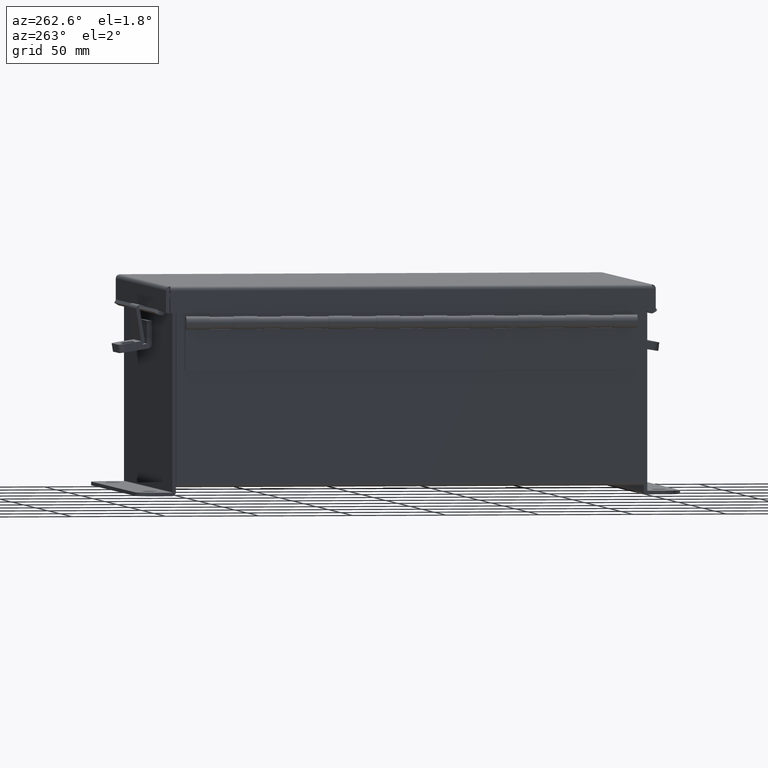
[diagram: clean part render]
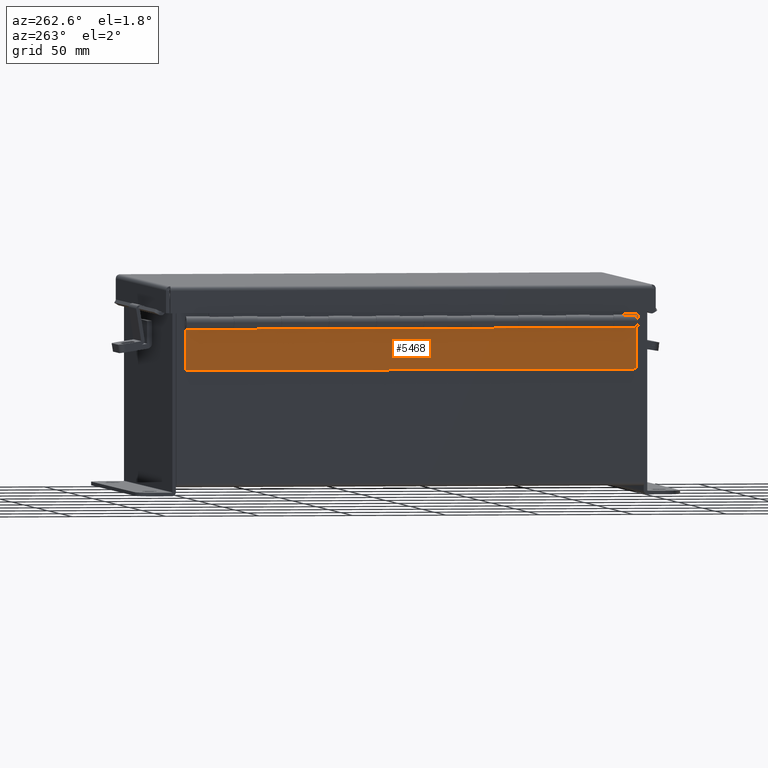
[diagram: same view with one face highlighted and labeled with its STEP entity id]
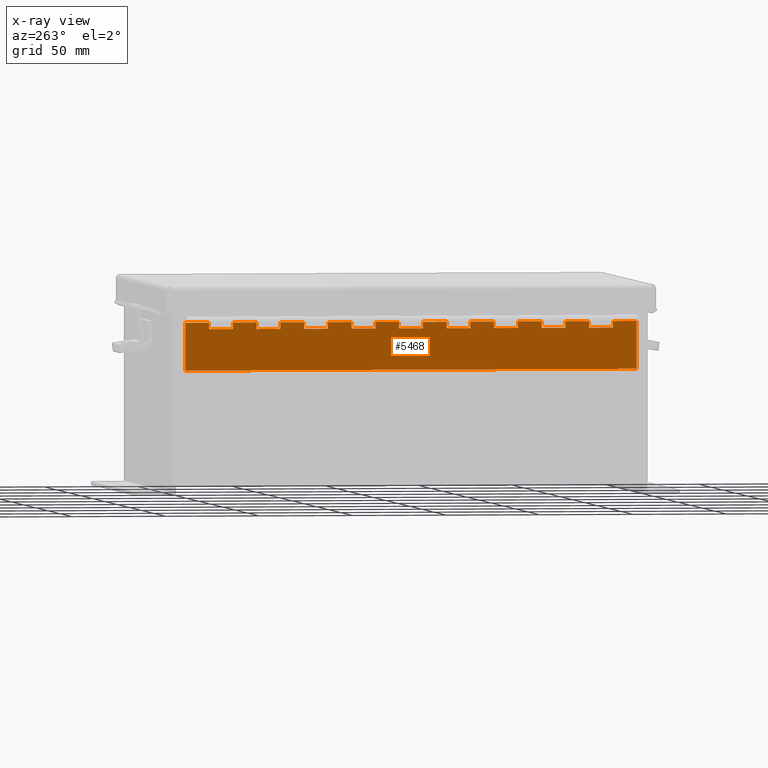
[diagram: x-ray of the same camera — body ghosted, the highlighted face saturated]
A machine part, auxiliary view. The second image highlights one B-rep face of the part: STEP entity #5468.
The next image is the same camera in x-ray: the body ghosted, the highlighted face saturated — about 0% of this face is hidden behind the body in this view.
In plain terms, the highlighted planar face has unit normal (1, -0, 0).
Its self-contained STEP definition (entity closure, byte-faithful):
#31 = CARTESIAN_POINT ( 'NONE',  ( 0.2730000000000000200, -5.000000000000000000, 3.404394821604483900E-016 ) ) ;
#58 = VECTOR ( 'NONE', #6525, 39.37007874015748100 ) ;
#103 = VERTEX_POINT ( 'NONE', #5431 ) ;
#131 = DIRECTION ( 'NONE',  ( -1.437814733507507500E-017, 1.000000000000000000, 0.0000000000000000000 ) ) ;
#192 = CARTESIAN_POINT ( 'NONE',  ( 0.2730000000000000200, -2.000000000000000000, 1.361757928641793600E-016 ) ) ;
#345 = DIRECTION ( 'NONE',  ( -1.437814733507507500E-017, 1.000000000000000000, 0.0000000000000000000 ) ) ;
#379 = CARTESIAN_POINT ( 'NONE',  ( 0.0000000000000000000, 6.500000000000000900, 1.361757928641793600E-016 ) ) ;
#443 = CARTESIAN_POINT ( 'NONE',  ( 0.0000000000000000000, 0.0000000000000000000, 0.0000000000000000000 ) ) ;
#458 = LINE ( 'NONE', #12876, #58 ) ;
#548 = LINE ( 'NONE', #14145, #14093 ) ;
#680 = CARTESIAN_POINT ( 'NONE',  ( 0.0000000000000000000, 9.000000000000000000, 0.0000000000000000000 ) ) ;
#721 = ORIENTED_EDGE ( 'NONE', *, *, #5906, .T. ) ;
#776 = LINE ( 'NONE', #3078, #7188 ) ;
#828 = VECTOR ( 'NONE', #3370, 39.37007874015748100 ) ;
#840 = LINE ( 'NONE', #4373, #6848 ) ;
#858 = CARTESIAN_POINT ( 'NONE',  ( 0.2729999999999998500, 3.500000000000000400, 4.087356820020549700E-016 ) ) ;
#925 = CARTESIAN_POINT ( 'NONE',  ( 0.1365000000000000100, 3.500000000000000400, 2.123841074574360600E-016 ) ) ;
#1096 = VERTEX_POINT ( 'NONE', #1875 ) ;
#1124 = ORIENTED_EDGE ( 'NONE', *, *, #9245, .F. ) ;
#1196 = CARTESIAN_POINT ( 'NONE',  ( 0.2729999999999998500, 4.500000000000000900, 3.406477855699652900E-016 ) ) ;
#1263 = CARTESIAN_POINT ( 'NONE',  ( 0.1365000000000000100, 8.500000000000000000, -1.280553747030123300E-016 ) ) ;
#1297 = LINE ( 'NONE', #2467, #11082 ) ;
#1312 = EDGE_CURVE ( 'NONE', #4474, #7155, #5519, .T. ) ;
#1365 = CARTESIAN_POINT ( 'NONE',  ( 0.2730000000000000200, -5.999999999999999100, 4.085273785925380200E-016 ) ) ;
#1367 = DIRECTION ( 'NONE',  ( -1.000000000000000000, 0.0000000000000000000, 0.0000000000000000000 ) ) ;
#1383 = ORIENTED_EDGE ( 'NONE', *, *, #14109, .F. ) ;
#1430 = EDGE_CURVE ( 'NONE', #3677, #5442, #13668, .T. ) ;
#1481 = DIRECTION ( 'NONE',  ( -1.437814733507507500E-017, 1.000000000000000000, 0.0000000000000000000 ) ) ;
#1514 = DIRECTION ( 'NONE',  ( -1.000000000000000000, 0.0000000000000000000, 0.0000000000000000000 ) ) ;
#1553 = VECTOR ( 'NONE', #14363, 39.37007874015748100 ) ;
#1633 = CARTESIAN_POINT ( 'NONE',  ( 0.2729999999999998500, 9.000000000000000000, 6.829619984160658000E-017 ) ) ;
#1667 = CARTESIAN_POINT ( 'NONE',  ( 0.0000000000000000000, 4.500000000000000900, 2.723515857283587100E-016 ) ) ;
#1795 = ORIENTED_EDGE ( 'NONE', *, *, #12142, .F. ) ;
#1818 = LINE ( 'NONE', #4915, #8212 ) ;
#1875 = CARTESIAN_POINT ( 'NONE',  ( 0.2729999999999998500, 5.500000000000000900, 2.725598891378756200E-016 ) ) ;
#1895 = DIRECTION ( 'NONE',  ( 0.0000000000000000000, 1.000000000000000000, -6.810147738116168400E-017 ) ) ;
#1965 = VECTOR ( 'NONE', #3549, 39.37007874015748100 ) ;
#1969 = LINE ( 'NONE', #1667, #1553 ) ;
#1993 = CARTESIAN_POINT ( 'NONE',  ( 1.136499999999999800, 9.500000000000000000, 0.0000000000000000000 ) ) ;
#2053 = DIRECTION ( 'NONE',  ( -1.000000000000000000, 0.0000000000000000000, -0.0000000000000000000 ) ) ;
#2058 = VERTEX_POINT ( 'NONE', #8761 ) ;
#2115 = CARTESIAN_POINT ( 'NONE',  ( 0.2729999999999998500, 1.500000000000000900, 5.449114748662342800E-016 ) ) ;
#2145 = VECTOR ( 'NONE', #14890, 39.37007874015748100 ) ;
#2163 = LINE ( 'NONE', #8878, #11531 ) ;
#2217 = DIRECTION ( 'NONE',  ( 0.0000000000000000000, 1.000000000000000000, -6.810147738116168400E-017 ) ) ;
#2281 = CARTESIAN_POINT ( 'NONE',  ( 0.1365000000000000100, -4.256342336322596800E-018, 4.524623239506435500E-016 ) ) ;
#2397 = VERTEX_POINT ( 'NONE', #8118 ) ;
#2467 = CARTESIAN_POINT ( 'NONE',  ( 0.1365000000000000100, -4.256342336322596800E-018, 4.524623239506435500E-016 ) ) ;
#2592 = ORIENTED_EDGE ( 'NONE', *, *, #5142, .F. ) ;
#2663 = EDGE_CURVE ( 'NONE', #6474, #6199, #14007, .T. ) ;
#2681 = VECTOR ( 'NONE', #131, 39.37007874015748100 ) ;
#2688 = EDGE_CURVE ( 'NONE', #4606, #3364, #458, .T. ) ;
#2741 = VECTOR ( 'NONE', #15843, 39.37007874015748100 ) ;
#2750 = VECTOR ( 'NONE', #4114, 39.37007874015748100 ) ;
#2794 = CARTESIAN_POINT ( 'NONE',  ( 0.1365000000000000100, -4.256342336322596800E-018, 4.524623239506435500E-016 ) ) ;
#2899 = DIRECTION ( 'NONE',  ( -1.000000000000000000, 0.0000000000000000000, 0.0000000000000000000 ) ) ;
#2956 = VERTEX_POINT ( 'NONE', #5846 ) ;
#3066 = EDGE_CURVE ( 'NONE', #7896, #6199, #11037, .T. ) ;
#3078 = CARTESIAN_POINT ( 'NONE',  ( 0.0000000000000000000, 2.500000000000001300, 4.085273785925380200E-016 ) ) ;
#3097 = CARTESIAN_POINT ( 'NONE',  ( 0.0000000000000000000, 1.500000000000000900, 4.766152750246277500E-016 ) ) ;
#3101 = EDGE_CURVE ( 'NONE', #4606, #14135, #840, .T. ) ;
#3114 = DIRECTION ( 'NONE',  ( -1.437814733507507500E-017, 1.000000000000000000, 0.0000000000000000000 ) ) ;
#3155 = LINE ( 'NONE', #14193, #12927 ) ;
#3299 = CARTESIAN_POINT ( 'NONE',  ( 0.2729999999999998500, 5.000000000000000000, 3.406477855699652900E-016 ) ) ;
#3364 = VERTEX_POINT ( 'NONE', #1263 ) ;
#3368 = CARTESIAN_POINT ( 'NONE',  ( 0.2730000000000000200, -4.000000000000000000, 2.723515857283587100E-016 ) ) ;
#3370 = DIRECTION ( 'NONE',  ( -1.000000000000000000, 0.0000000000000000000, 0.0000000000000000000 ) ) ;
#3384 = ORIENTED_EDGE ( 'NONE', *, *, #6919, .F. ) ;
#3391 = LINE ( 'NONE', #15393, #16144 ) ;
#3524 = DIRECTION ( 'NONE',  ( -1.000000000000000000, 0.0000000000000000000, 0.0000000000000000000 ) ) ;
#3540 = CARTESIAN_POINT ( 'NONE',  ( 0.0000000000000000000, 5.500000000000000900, 2.042636892962690100E-016 ) ) ;
#3549 = DIRECTION ( 'NONE',  ( 0.0000000000000000000, 1.000000000000000000, -6.810147738116168400E-017 ) ) ;
#3603 = EDGE_CURVE ( 'NONE', #1096, #11197, #4205, .T. ) ;
#3616 = VERTEX_POINT ( 'NONE', #858 ) ;
#3620 = ORIENTED_EDGE ( 'NONE', *, *, #12126, .F. ) ;
#3647 = ORIENTED_EDGE ( 'NONE', *, *, #11825, .T. ) ;
#3663 = VECTOR ( 'NONE', #345, 39.37007874015748100 ) ;
#3677 = VERTEX_POINT ( 'NONE', #10736 ) ;
#3685 = CARTESIAN_POINT ( 'NONE',  ( 0.2730000000000000200, -7.000000000000000000, 4.766152750246277500E-016 ) ) ;
#3827 = VECTOR ( 'NONE', #8104, 39.37007874015748100 ) ;
#3833 = VECTOR ( 'NONE', #2899, 39.37007874015748100 ) ;
#4045 = DIRECTION ( 'NONE',  ( -1.000000000000000000, 0.0000000000000000000, 0.0000000000000000000 ) ) ;
#4114 = DIRECTION ( 'NONE',  ( -1.000000000000000000, 0.0000000000000000000, 0.0000000000000000000 ) ) ;
#4125 = LINE ( 'NONE', #6238, #7553 ) ;
#4189 = ORIENTED_EDGE ( 'NONE', *, *, #15868, .T. ) ;
#4205 = LINE ( 'NONE', #3540, #828 ) ;
#4219 = VECTOR ( 'NONE', #1895, 39.37007874015748100 ) ;
#4222 = EDGE_CURVE ( 'NONE', #8970, #12136, #6630, .T. ) ;
#4225 = LINE ( 'NONE', #443, #3827 ) ;
#4354 = LINE ( 'NONE', #10503, #7380 ) ;
#4373 = CARTESIAN_POINT ( 'NONE',  ( 0.2730000000000000200, 3.925234222475494700E-018, 0.0000000000000000000 ) ) ;
#4453 = DIRECTION ( 'NONE',  ( -1.437814733507507500E-017, 1.000000000000000000, 0.0000000000000000000 ) ) ;
#4474 = VERTEX_POINT ( 'NONE', #13557 ) ;
#4514 = VERTEX_POINT ( 'NONE', #9227 ) ;
#4581 = CARTESIAN_POINT ( 'NONE',  ( 0.1365000000000000100, 8.000000000000000000, -9.234949509864987000E-017 ) ) ;
#4606 = VERTEX_POINT ( 'NONE', #9686 ) ;
#4766 = EDGE_CURVE ( 'NONE', #3677, #7977, #12213, .T. ) ;
#4857 = CARTESIAN_POINT ( 'NONE',  ( 0.0000000000000000000, 7.000000000000000900, 1.361757928641793600E-016 ) ) ;
#4915 = CARTESIAN_POINT ( 'NONE',  ( 0.0000000000000000000, 3.000000000000000900, 4.085273785925380200E-016 ) ) ;
#5116 = VECTOR ( 'NONE', #1481, 39.37007874015748100 ) ;
#5142 = EDGE_CURVE ( 'NONE', #14338, #4514, #1818, .T. ) ;
#5189 = VERTEX_POINT ( 'NONE', #1196 ) ;
#5197 = VERTEX_POINT ( 'NONE', #15209 ) ;
#5236 = EDGE_CURVE ( 'NONE', #3616, #2956, #13366, .T. ) ;
#5284 = CARTESIAN_POINT ( 'NONE',  ( 0.2729999999999998500, 0.5000000000000006700, 6.129993712983240600E-016 ) ) ;
#5431 = CARTESIAN_POINT ( 'NONE',  ( 0.1365000000000000100, 5.000000000000000000, 1.119549370448351400E-016 ) ) ;
#5442 = VERTEX_POINT ( 'NONE', #12146 ) ;
#5468 = ADVANCED_FACE ( 'NONE', ( #13541 ), #8408, .F. ) ;
#5499 = EDGE_CURVE ( 'NONE', #12136, #9021, #6802, .T. ) ;
#5519 = LINE ( 'NONE', #7613, #2145 ) ;
#5574 = VERTEX_POINT ( 'NONE', #8559 ) ;
#5591 = CARTESIAN_POINT ( 'NONE',  ( 0.2729999999999998500, 1.000000000000000200, 6.129993712983240600E-016 ) ) ;
#5599 = ORIENTED_EDGE ( 'NONE', *, *, #5236, .F. ) ;
#5619 = LINE ( 'NONE', #11874, #12021 ) ;
#5680 = LINE ( 'NONE', #11706, #9079 ) ;
#5800 = ORIENTED_EDGE ( 'NONE', *, *, #12459, .T. ) ;
#5846 = CARTESIAN_POINT ( 'NONE',  ( 0.2729999999999998500, 4.000000000000000000, 4.087356820020549700E-016 ) ) ;
#5849 = CARTESIAN_POINT ( 'NONE',  ( 0.0000000000000000000, 0.5000000000000006700, 5.447031714567174300E-016 ) ) ;
#5906 = EDGE_CURVE ( 'NONE', #8429, #7936, #776, .T. ) ;
#5973 = ORIENTED_EDGE ( 'NONE', *, *, #13395, .F. ) ;
#6178 = DIRECTION ( 'NONE',  ( -1.000000000000000000, 0.0000000000000000000, 0.0000000000000000000 ) ) ;
#6199 = VERTEX_POINT ( 'NONE', #15117 ) ;
#6238 = CARTESIAN_POINT ( 'NONE',  ( 0.1365000000000000100, -4.256342336322596800E-018, 4.524623239506435500E-016 ) ) ;
#6276 = LINE ( 'NONE', #9852, #9671 ) ;
#6382 = EDGE_LOOP ( 'NONE', ( #15214, #8275, #3647, #16082, #5800, #14152, #13949, #16071, #9984, #12746, #13354, #13164, #12700, #15399, #3620, #13944, #9501, #12223, #1383, #14295, #16325, #9097, #1795, #12168, #16349, #11372, #16067, #5599, #4189, #5973, #2592, #1124, #721, #3384, #13424, #10015, #7608, #9297, #14247, #12090 ) ) ;
#6400 = DIRECTION ( 'NONE',  ( -1.437814733507507500E-017, 1.000000000000000000, 0.0000000000000000000 ) ) ;
#6423 = DIRECTION ( 'NONE',  ( 0.0000000000000000000, 1.000000000000000000, -6.810147738116168400E-017 ) ) ;
#6474 = VERTEX_POINT ( 'NONE', #6701 ) ;
#6525 = DIRECTION ( 'NONE',  ( -1.000000000000000000, 0.0000000000000000000, 0.0000000000000000000 ) ) ;
#6536 = LINE ( 'NONE', #15610, #2750 ) ;
#6572 = DIRECTION ( 'NONE',  ( 0.0000000000000000000, 1.000000000000000000, -6.810147738116168400E-017 ) ) ;
#6595 = VECTOR ( 'NONE', #10469, 39.37007874015748100 ) ;
#6630 = LINE ( 'NONE', #3685, #13397 ) ;
#6701 = CARTESIAN_POINT ( 'NONE',  ( 0.2729999999999998500, 6.500000000000000900, 2.044719927057859400E-016 ) ) ;
#6739 = CARTESIAN_POINT ( 'NONE',  ( 0.1365000000000000100, -4.256342336322596800E-018, 4.524623239506435500E-016 ) ) ;
#6785 = DIRECTION ( 'NONE',  ( -1.000000000000000000, 0.0000000000000000000, 0.0000000000000000000 ) ) ;
#6802 = LINE ( 'NONE', #12256, #13168 ) ;
#6808 = VECTOR ( 'NONE', #6423, 39.37007874015748100 ) ;
#6838 = DIRECTION ( 'NONE',  ( -1.000000000000000000, 0.0000000000000000000, 0.0000000000000000000 ) ) ;
#6848 = VECTOR ( 'NONE', #6400, 39.37007874015748100 ) ;
#6859 = EDGE_CURVE ( 'NONE', #5197, #8303, #8743, .T. ) ;
#6919 = EDGE_CURVE ( 'NONE', #9021, #7936, #4125, .T. ) ;
#6936 = VECTOR ( 'NONE', #6785, 39.37007874015748100 ) ;
#7075 = EDGE_CURVE ( 'NONE', #6474, #11398, #8923, .T. ) ;
#7093 = AXIS2_PLACEMENT_3D ( 'NONE', #1993, #9682, #2053 ) ;
#7155 = VERTEX_POINT ( 'NONE', #13028 ) ;
#7188 = VECTOR ( 'NONE', #6838, 39.37007874015748100 ) ;
#7252 = DIRECTION ( 'NONE',  ( -1.437814733507507500E-017, 1.000000000000000000, 0.0000000000000000000 ) ) ;
#7266 = EDGE_CURVE ( 'NONE', #8970, #5574, #16277, .T. ) ;
#7369 = VERTEX_POINT ( 'NONE', #4581 ) ;
#7380 = VECTOR ( 'NONE', #1514, 39.37007874015748100 ) ;
#7533 = DIRECTION ( 'NONE',  ( -1.000000000000000000, 0.0000000000000000000, 0.0000000000000000000 ) ) ;
#7553 = VECTOR ( 'NONE', #13836, 39.37007874015748100 ) ;
#7608 = ORIENTED_EDGE ( 'NONE', *, *, #7266, .T. ) ;
#7613 = CARTESIAN_POINT ( 'NONE',  ( 0.1365000000000000100, -4.256342336322596800E-018, 4.524623239506435500E-016 ) ) ;
#7713 = CARTESIAN_POINT ( 'NONE',  ( 0.1365000000000000100, -4.256342336322596800E-018, 4.524623239506435500E-016 ) ) ;
#7896 = VERTEX_POINT ( 'NONE', #12683 ) ;
#7926 = LINE ( 'NONE', #9014, #11332 ) ;
#7936 = VERTEX_POINT ( 'NONE', #15340 ) ;
#7977 = VERTEX_POINT ( 'NONE', #10340 ) ;
#8104 = DIRECTION ( 'NONE',  ( 1.000000000000000000, 0.0000000000000000000, 0.0000000000000000000 ) ) ;
#8118 = CARTESIAN_POINT ( 'NONE',  ( 1.136500000000000100, 0.0000000000000000000, 0.0000000000000000000 ) ) ;
#8207 = CARTESIAN_POINT ( 'NONE',  ( 0.2730000000000000200, -1.000000000000000000, 6.808789643208967800E-017 ) ) ;
#8212 = VECTOR ( 'NONE', #13830, 39.37007874015748100 ) ;
#8275 = ORIENTED_EDGE ( 'NONE', *, *, #10289, .F. ) ;
#8303 = VERTEX_POINT ( 'NONE', #9866 ) ;
#8408 = PLANE ( 'NONE',  #7093 ) ;
#8429 = VERTEX_POINT ( 'NONE', #13796 ) ;
#8558 = VERTEX_POINT ( 'NONE', #14070 ) ;
#8559 = CARTESIAN_POINT ( 'NONE',  ( 0.1365000000000000100, 1.500000000000000900, 3.485599003216153400E-016 ) ) ;
#8743 = LINE ( 'NONE', #2281, #1965 ) ;
#8761 = CARTESIAN_POINT ( 'NONE',  ( 0.2729999999999998500, 6.000000000000000900, 2.725598891378756200E-016 ) ) ;
#8806 = VECTOR ( 'NONE', #3114, 39.37007874015748100 ) ;
#8825 = CARTESIAN_POINT ( 'NONE',  ( 0.1365000000000000100, 1.000000000000000200, 3.843608465694819100E-016 ) ) ;
#8839 = VECTOR ( 'NONE', #11715, 39.37007874015748100 ) ;
#8878 = CARTESIAN_POINT ( 'NONE',  ( 0.0000000000000000000, 3.500000000000000400, 3.404394821604483900E-016 ) ) ;
#8923 = LINE ( 'NONE', #192, #5116 ) ;
#8970 = VERTEX_POINT ( 'NONE', #2115 ) ;
#9013 = EDGE_CURVE ( 'NONE', #103, #11197, #6276, .T. ) ;
#9014 = CARTESIAN_POINT ( 'NONE',  ( 0.0000000000000000000, 8.000000000000000000, 6.808789643208967800E-017 ) ) ;
#9017 = VERTEX_POINT ( 'NONE', #925 ) ;
#9021 = VERTEX_POINT ( 'NONE', #14912 ) ;
#9045 = DIRECTION ( 'NONE',  ( 0.0000000000000000000, 1.000000000000000000, -6.810147738116168400E-017 ) ) ;
#9079 = VECTOR ( 'NONE', #4045, 39.37007874015748100 ) ;
#9097 = ORIENTED_EDGE ( 'NONE', *, *, #9013, .F. ) ;
#9227 = CARTESIAN_POINT ( 'NONE',  ( 0.1365000000000000100, 3.000000000000000900, 2.481578918071585100E-016 ) ) ;
#9235 = VECTOR ( 'NONE', #7533, 39.37007874015748100 ) ;
#9245 = EDGE_CURVE ( 'NONE', #8429, #14338, #12848, .T. ) ;
#9283 = CARTESIAN_POINT ( 'NONE',  ( 0.2730000000000000200, -2.999999999999999600, 2.042636892962690100E-016 ) ) ;
#9297 = ORIENTED_EDGE ( 'NONE', *, *, #14708, .F. ) ;
#9501 = ORIENTED_EDGE ( 'NONE', *, *, #2663, .T. ) ;
#9537 = VERTEX_POINT ( 'NONE', #3299 ) ;
#9633 = VECTOR ( 'NONE', #6178, 39.37007874015748100 ) ;
#9656 = CARTESIAN_POINT ( 'NONE',  ( 0.1365000000000000100, 7.000000000000000900, -2.424801771748823900E-017 ) ) ;
#9671 = VECTOR ( 'NONE', #2217, 39.37007874015748100 ) ;
#9682 = DIRECTION ( 'NONE',  ( 0.0000000000000000000, 0.0000000000000000000, -1.000000000000000000 ) ) ;
#9686 = CARTESIAN_POINT ( 'NONE',  ( 0.2729999999999998500, 8.500000000000000000, 6.829619984160658000E-017 ) ) ;
#9831 = CARTESIAN_POINT ( 'NONE',  ( 0.2729999999999998500, 7.000000000000000900, 2.044719927057859400E-016 ) ) ;
#9852 = CARTESIAN_POINT ( 'NONE',  ( 0.1365000000000000100, -4.256342336322596800E-018, 4.524623239506435500E-016 ) ) ;
#9866 = CARTESIAN_POINT ( 'NONE',  ( 0.1365000000000000100, 9.500000000000000000, -1.963515745446189100E-016 ) ) ;
#9984 = ORIENTED_EDGE ( 'NONE', *, *, #2688, .T. ) ;
#10015 = ORIENTED_EDGE ( 'NONE', *, *, #4222, .F. ) ;
#10150 = VECTOR ( 'NONE', #3524, 39.37007874015748100 ) ;
#10199 = VERTEX_POINT ( 'NONE', #13679 ) ;
#10289 = EDGE_CURVE ( 'NONE', #10199, #8558, #1297, .T. ) ;
#10340 = CARTESIAN_POINT ( 'NONE',  ( 0.2729999999999998500, 8.000000000000000000, 1.363840962736962600E-016 ) ) ;
#10427 = EDGE_CURVE ( 'NONE', #12994, #11551, #5680, .T. ) ;
#10469 = DIRECTION ( 'NONE',  ( -1.437814733507507500E-017, 1.000000000000000000, 0.0000000000000000000 ) ) ;
#10503 = CARTESIAN_POINT ( 'NONE',  ( 0.0000000000000000000, 6.000000000000000900, 2.042636892962690100E-016 ) ) ;
#10570 = CARTESIAN_POINT ( 'NONE',  ( 1.136500000000000100, 9.500000000000000000, 0.0000000000000000000 ) ) ;
#10651 = EDGE_CURVE ( 'NONE', #5189, #9537, #16037, .T. ) ;
#10736 = CARTESIAN_POINT ( 'NONE',  ( 0.2729999999999998500, 7.500000000000000000, 1.363840962736962600E-016 ) ) ;
#10840 = CARTESIAN_POINT ( 'NONE',  ( 0.2730000000000000200, -8.000000000000000000, 5.447031714567174300E-016 ) ) ;
#10979 = DIRECTION ( 'NONE',  ( -1.000000000000000000, 0.0000000000000000000, 0.0000000000000000000 ) ) ;
#11037 = LINE ( 'NONE', #6739, #4219 ) ;
#11082 = VECTOR ( 'NONE', #12617, 39.37007874015748100 ) ;
#11086 = VERTEX_POINT ( 'NONE', #10570 ) ;
#11087 = EDGE_CURVE ( 'NONE', #1096, #2058, #13812, .T. ) ;
#11197 = VERTEX_POINT ( 'NONE', #13282 ) ;
#11249 = EDGE_CURVE ( 'NONE', #13551, #12994, #12261, .T. ) ;
#11332 = VECTOR ( 'NONE', #1367, 39.37007874015748100 ) ;
#11372 = ORIENTED_EDGE ( 'NONE', *, *, #1312, .F. ) ;
#11398 = VERTEX_POINT ( 'NONE', #9831 ) ;
#11531 = VECTOR ( 'NONE', #13981, 39.37007874015748100 ) ;
#11551 = VERTEX_POINT ( 'NONE', #8825 ) ;
#11706 = CARTESIAN_POINT ( 'NONE',  ( 0.0000000000000000000, 1.000000000000000200, 5.447031714567174300E-016 ) ) ;
#11714 = EDGE_CURVE ( 'NONE', #7369, #3364, #12649, .T. ) ;
#11715 = DIRECTION ( 'NONE',  ( 0.0000000000000000000, 1.000000000000000000, -6.810147738116168400E-017 ) ) ;
#11825 = EDGE_CURVE ( 'NONE', #10199, #2397, #4225, .T. ) ;
#11874 = CARTESIAN_POINT ( 'NONE',  ( 0.0000000000000000000, 9.500000000000000000, 0.0000000000000000000 ) ) ;
#11922 = DIRECTION ( 'NONE',  ( -1.437814733507507500E-017, 1.000000000000000000, 0.0000000000000000000 ) ) ;
#12021 = VECTOR ( 'NONE', #13142, 39.37007874015748100 ) ;
#12090 = ORIENTED_EDGE ( 'NONE', *, *, #11249, .F. ) ;
#12126 = EDGE_CURVE ( 'NONE', #11398, #16300, #13015, .T. ) ;
#12136 = VERTEX_POINT ( 'NONE', #15099 ) ;
#12142 = EDGE_CURVE ( 'NONE', #9537, #103, #15988, .T. ) ;
#12146 = CARTESIAN_POINT ( 'NONE',  ( 0.1365000000000000100, 7.500000000000000000, -5.996747827092265400E-017 ) ) ;
#12168 = ORIENTED_EDGE ( 'NONE', *, *, #10651, .F. ) ;
#12213 = LINE ( 'NONE', #8207, #8806 ) ;
#12223 = ORIENTED_EDGE ( 'NONE', *, *, #3066, .F. ) ;
#12256 = CARTESIAN_POINT ( 'NONE',  ( 0.0000000000000000000, 2.000000000000000400, 4.766152750246277500E-016 ) ) ;
#12261 = LINE ( 'NONE', #10840, #14825 ) ;
#12459 = EDGE_CURVE ( 'NONE', #11086, #8303, #5619, .T. ) ;
#12617 = DIRECTION ( 'NONE',  ( 0.0000000000000000000, 1.000000000000000000, -6.810147738116168400E-017 ) ) ;
#12649 = LINE ( 'NONE', #2794, #8839 ) ;
#12672 = VECTOR ( 'NONE', #7252, 39.37007874015748100 ) ;
#12683 = CARTESIAN_POINT ( 'NONE',  ( 0.1365000000000000100, 6.000000000000000900, 4.385345966367344800E-017 ) ) ;
#12700 = ORIENTED_EDGE ( 'NONE', *, *, #1430, .T. ) ;
#12736 = LINE ( 'NONE', #5849, #15700 ) ;
#12746 = ORIENTED_EDGE ( 'NONE', *, *, #11714, .F. ) ;
#12848 = LINE ( 'NONE', #1365, #2681 ) ;
#12876 = CARTESIAN_POINT ( 'NONE',  ( 0.0000000000000000000, 8.500000000000000000, 0.0000000000000000000 ) ) ;
#12927 = VECTOR ( 'NONE', #6572, 39.37007874015748100 ) ;
#12994 = VERTEX_POINT ( 'NONE', #5591 ) ;
#13015 = LINE ( 'NONE', #4857, #9633 ) ;
#13028 = CARTESIAN_POINT ( 'NONE',  ( 0.1365000000000000100, 4.500000000000000900, 1.442962110253463800E-016 ) ) ;
#13142 = DIRECTION ( 'NONE',  ( -1.000000000000000000, -0.0000000000000000000, -0.0000000000000000000 ) ) ;
#13164 = ORIENTED_EDGE ( 'NONE', *, *, #4766, .F. ) ;
#13168 = VECTOR ( 'NONE', #16068, 39.37007874015748100 ) ;
#13282 = CARTESIAN_POINT ( 'NONE',  ( 0.1365000000000000100, 5.500000000000000900, 7.620831459325667900E-017 ) ) ;
#13354 = ORIENTED_EDGE ( 'NONE', *, *, #15383, .F. ) ;
#13366 = LINE ( 'NONE', #31, #6595 ) ;
#13395 = EDGE_CURVE ( 'NONE', #4514, #9017, #13548, .T. ) ;
#13397 = VECTOR ( 'NONE', #11922, 39.37007874015748100 ) ;
#13413 = EDGE_CURVE ( 'NONE', #16300, #5442, #3391, .T. ) ;
#13424 = ORIENTED_EDGE ( 'NONE', *, *, #5499, .F. ) ;
#13507 = LINE ( 'NONE', #680, #10150 ) ;
#13541 = FACE_OUTER_BOUND ( 'NONE', #6382, .T. ) ;
#13548 = LINE ( 'NONE', #7713, #6808 ) ;
#13551 = VERTEX_POINT ( 'NONE', #5284 ) ;
#13557 = CARTESIAN_POINT ( 'NONE',  ( 0.1365000000000000100, 4.000000000000000000, 1.800564144259968700E-016 ) ) ;
#13668 = LINE ( 'NONE', #15467, #6936 ) ;
#13679 = CARTESIAN_POINT ( 'NONE',  ( 0.1364999999999999000, 0.0000000000000000000, 0.0000000000000000000 ) ) ;
#13796 = CARTESIAN_POINT ( 'NONE',  ( 0.2729999999999998500, 2.500000000000001300, 4.768235784341446000E-016 ) ) ;
#13812 = LINE ( 'NONE', #9283, #3663 ) ;
#13830 = DIRECTION ( 'NONE',  ( -1.000000000000000000, 0.0000000000000000000, 0.0000000000000000000 ) ) ;
#13836 = DIRECTION ( 'NONE',  ( 0.0000000000000000000, 1.000000000000000000, -6.810147738116168400E-017 ) ) ;
#13944 = ORIENTED_EDGE ( 'NONE', *, *, #7075, .F. ) ;
#13949 = ORIENTED_EDGE ( 'NONE', *, *, #15752, .F. ) ;
#13981 = DIRECTION ( 'NONE',  ( -1.000000000000000000, 0.0000000000000000000, 0.0000000000000000000 ) ) ;
#14007 = LINE ( 'NONE', #379, #3833 ) ;
#14070 = CARTESIAN_POINT ( 'NONE',  ( 0.1365000000000000100, 0.5000000000000006700, 4.166477967537051200E-016 ) ) ;
#14093 = VECTOR ( 'NONE', #15450, 39.37007874015748100 ) ;
#14109 = EDGE_CURVE ( 'NONE', #2058, #7896, #4354, .T. ) ;
#14135 = VERTEX_POINT ( 'NONE', #1633 ) ;
#14145 = CARTESIAN_POINT ( 'NONE',  ( 1.136500000000000100, 0.0000000000000000000, 0.0000000000000000000 ) ) ;
#14152 = ORIENTED_EDGE ( 'NONE', *, *, #6859, .F. ) ;
#14193 = CARTESIAN_POINT ( 'NONE',  ( 0.1365000000000000100, -4.256342336322596800E-018, 4.524623239506435500E-016 ) ) ;
#14247 = ORIENTED_EDGE ( 'NONE', *, *, #10427, .F. ) ;
#14295 = ORIENTED_EDGE ( 'NONE', *, *, #11087, .F. ) ;
#14338 = VERTEX_POINT ( 'NONE', #16044 ) ;
#14363 = DIRECTION ( 'NONE',  ( -1.000000000000000000, 0.0000000000000000000, 0.0000000000000000000 ) ) ;
#14708 = EDGE_CURVE ( 'NONE', #11551, #5574, #3155, .T. ) ;
#14825 = VECTOR ( 'NONE', #4453, 39.37007874015748100 ) ;
#14861 = EDGE_CURVE ( 'NONE', #5189, #7155, #1969, .T. ) ;
#14890 = DIRECTION ( 'NONE',  ( 0.0000000000000000000, 1.000000000000000000, -6.810147738116168400E-017 ) ) ;
#14912 = CARTESIAN_POINT ( 'NONE',  ( 0.1365000000000000100, 2.000000000000000400, 3.162593691883202100E-016 ) ) ;
#15056 = EDGE_CURVE ( 'NONE', #13551, #8558, #12736, .T. ) ;
#15099 = CARTESIAN_POINT ( 'NONE',  ( 0.2729999999999998500, 2.000000000000000400, 5.449114748662342800E-016 ) ) ;
#15117 = CARTESIAN_POINT ( 'NONE',  ( 0.1365000000000000100, 6.500000000000000900, 8.120418161167023200E-018 ) ) ;
#15152 = CARTESIAN_POINT ( 'NONE',  ( 0.0000000000000000000, 5.000000000000000000, 2.723515857283587100E-016 ) ) ;
#15209 = CARTESIAN_POINT ( 'NONE',  ( 0.1365000000000000100, 9.000000000000000000, -1.604509724798116200E-016 ) ) ;
#15214 = ORIENTED_EDGE ( 'NONE', *, *, #15056, .T. ) ;
#15340 = CARTESIAN_POINT ( 'NONE',  ( 0.1365000000000000100, 2.500000000000001300, 2.804720038895256600E-016 ) ) ;
#15383 = EDGE_CURVE ( 'NONE', #7977, #7369, #7926, .T. ) ;
#15393 = CARTESIAN_POINT ( 'NONE',  ( 0.1365000000000000100, -4.256342336322596800E-018, 4.524623239506435500E-016 ) ) ;
#15399 = ORIENTED_EDGE ( 'NONE', *, *, #13413, .F. ) ;
#15450 = DIRECTION ( 'NONE',  ( -1.437814733507507200E-017, 1.000000000000000000, 0.0000000000000000000 ) ) ;
#15467 = CARTESIAN_POINT ( 'NONE',  ( 0.0000000000000000000, 7.500000000000000000, 6.808789643208967800E-017 ) ) ;
#15610 = CARTESIAN_POINT ( 'NONE',  ( 0.0000000000000000000, 4.000000000000000000, 3.404394821604483900E-016 ) ) ;
#15700 = VECTOR ( 'NONE', #10979, 39.37007874015748100 ) ;
#15752 = EDGE_CURVE ( 'NONE', #14135, #5197, #13507, .T. ) ;
#15843 = DIRECTION ( 'NONE',  ( -1.000000000000000000, 0.0000000000000000000, 0.0000000000000000000 ) ) ;
#15868 = EDGE_CURVE ( 'NONE', #3616, #9017, #2163, .T. ) ;
#15975 = EDGE_CURVE ( 'NONE', #2397, #11086, #548, .T. ) ;
#15988 = LINE ( 'NONE', #15152, #9235 ) ;
#16037 = LINE ( 'NONE', #3368, #12672 ) ;
#16044 = CARTESIAN_POINT ( 'NONE',  ( 0.2729999999999998500, 3.000000000000000900, 4.768235784341446000E-016 ) ) ;
#16067 = ORIENTED_EDGE ( 'NONE', *, *, #16069, .F. ) ;
#16069 = EDGE_CURVE ( 'NONE', #2956, #4474, #6536, .T. ) ;
#16068 = DIRECTION ( 'NONE',  ( -1.000000000000000000, 0.0000000000000000000, 0.0000000000000000000 ) ) ;
#16071 = ORIENTED_EDGE ( 'NONE', *, *, #3101, .F. ) ;
#16082 = ORIENTED_EDGE ( 'NONE', *, *, #15975, .T. ) ;
#16144 = VECTOR ( 'NONE', #9045, 39.37007874015748100 ) ;
#16277 = LINE ( 'NONE', #3097, #2741 ) ;
#16300 = VERTEX_POINT ( 'NONE', #9656 ) ;
#16325 = ORIENTED_EDGE ( 'NONE', *, *, #3603, .T. ) ;
#16349 = ORIENTED_EDGE ( 'NONE', *, *, #14861, .T. ) ;